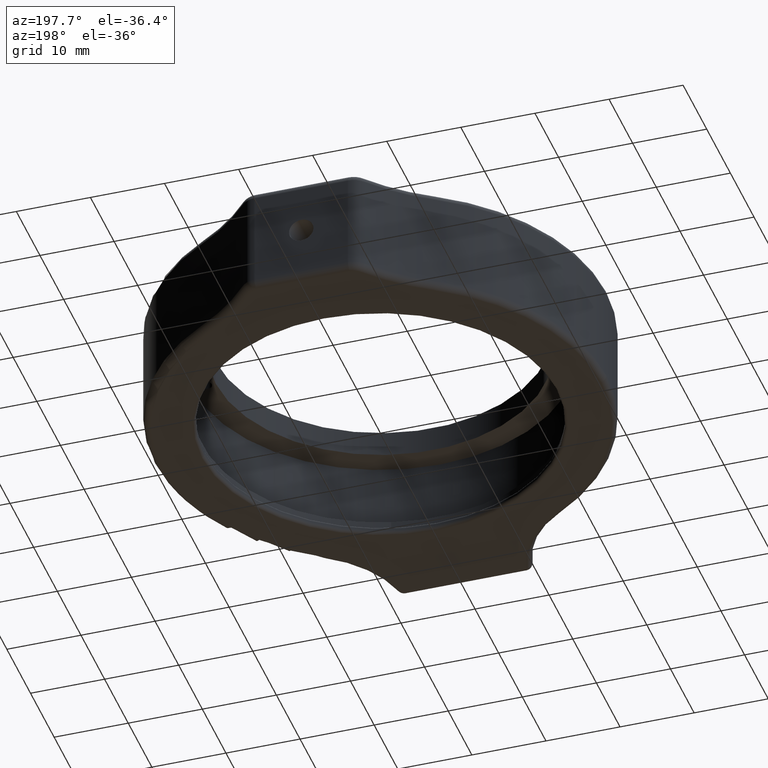
[diagram: clean part render]
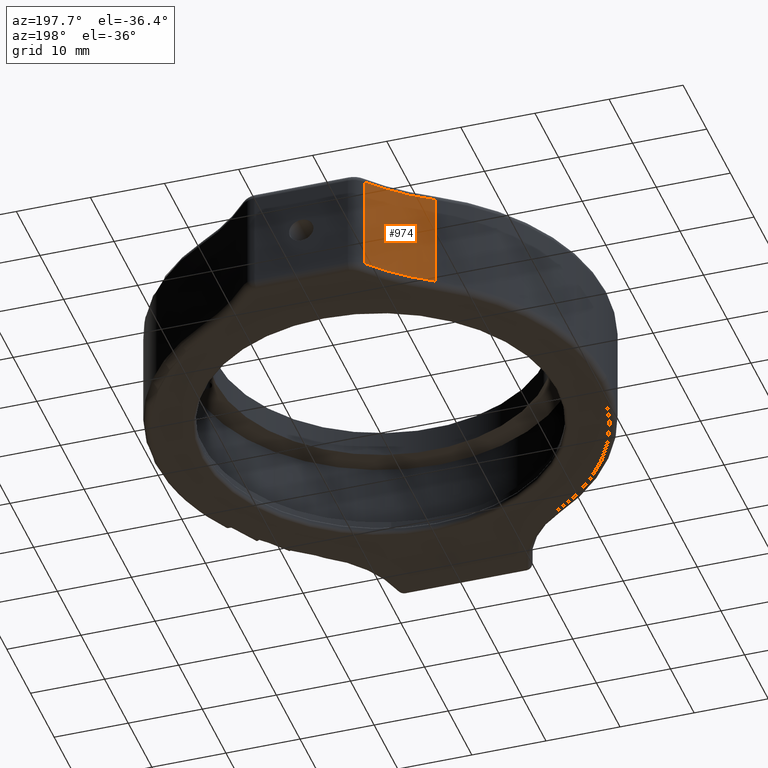
[diagram: same view with one face highlighted and labeled with its STEP entity id]
A machine part, auxiliary view. The second image highlights one B-rep face of the part: STEP entity #974.
In plain terms, the highlighted cylindrical surface (partial cylindrical patch) has radius 30 mm, axis along (-0, 0, 1).
Its self-contained STEP definition (entity closure, byte-faithful):
#96 = CARTESIAN_POINT ( 'NONE',  ( -31.28495036744999400, 51.78322006698884600, -15.00000000000000000 ) ) ;
#183 = EDGE_CURVE ( 'NONE', #896, #1405, #1856, .T. ) ;
#239 = CARTESIAN_POINT ( 'NONE',  ( -15.77175183813596100, 26.10559028170511600, -15.00000000000000000 ) ) ;
#241 = ORIENTED_EDGE ( 'NONE', *, *, #1471, .T. ) ;
#286 = DIRECTION ( 'NONE',  ( -0.0000000000000000000, -0.0000000000000000000, 1.000000000000000000 ) ) ;
#337 = CIRCLE ( 'NONE', #423, 30.00000000000000000 ) ;
#423 = AXIS2_PLACEMENT_3D ( 'NONE', #1821, #286, #810 ) ;
#431 = DIRECTION ( 'NONE',  ( -0.0000000000000000000, 0.0000000000000000000, 1.000000000000000000 ) ) ;
#468 = FACE_OUTER_BOUND ( 'NONE', #1328, .T. ) ;
#657 = VERTEX_POINT ( 'NONE', #1300 ) ;
#723 = VECTOR ( 'NONE', #1464, 1000.000000000000000 ) ;
#780 = VERTEX_POINT ( 'NONE', #1059 ) ;
#810 = DIRECTION ( 'NONE',  ( -1.000000000000000000, -3.006854025026465500E-015, 0.0000000000000000000 ) ) ;
#896 = VERTEX_POINT ( 'NONE', #1787 ) ;
#943 = DIRECTION ( 'NONE',  ( 0.0000000000000000000, 0.0000000000000000000, -1.000000000000000000 ) ) ;
#974 = ADVANCED_FACE ( 'NONE', ( #468 ), #2197, .F. ) ;
#1059 = CARTESIAN_POINT ( 'NONE',  ( -8.220810579183693200, 32.59870923592220000, -1.000000000000000900 ) ) ;
#1064 = DIRECTION ( 'NONE',  ( -0.0000000000000000000, 0.0000000000000000000, 1.000000000000000000 ) ) ;
#1186 = AXIS2_PLACEMENT_3D ( 'NONE', #96, #431, #1778 ) ;
#1300 = CARTESIAN_POINT ( 'NONE',  ( -8.220810579183693200, 32.59870923592220000, -13.99999999999999800 ) ) ;
#1328 = EDGE_LOOP ( 'NONE', ( #1843, #1962, #1704, #241 ) ) ;
#1405 = VERTEX_POINT ( 'NONE', #1966 ) ;
#1445 = LINE ( 'NONE', #1988, #723 ) ;
#1464 = DIRECTION ( 'NONE',  ( -0.0000000000000000000, 0.0000000000000000000, 1.000000000000000000 ) ) ;
#1471 = EDGE_CURVE ( 'NONE', #1405, #780, #337, .T. ) ;
#1477 = EDGE_CURVE ( 'NONE', #657, #896, #1745, .T. ) ;
#1488 = EDGE_CURVE ( 'NONE', #657, #780, #1445, .T. ) ;
#1624 = DIRECTION ( 'NONE',  ( -1.000000000000000000, 4.625929269271485900E-016, 0.0000000000000000000 ) ) ;
#1703 = AXIS2_PLACEMENT_3D ( 'NONE', #1996, #943, #1624 ) ;
#1704 = ORIENTED_EDGE ( 'NONE', *, *, #183, .T. ) ;
#1745 = CIRCLE ( 'NONE', #1703, 30.00000000000000000 ) ;
#1778 = DIRECTION ( 'NONE',  ( 1.000000000000000000, -4.625929269271485900E-016, 0.0000000000000000000 ) ) ;
#1787 = CARTESIAN_POINT ( 'NONE',  ( -15.77175183813596100, 26.10559028170511600, -13.99999999999999800 ) ) ;
#1821 = CARTESIAN_POINT ( 'NONE',  ( -31.28495036744999400, 51.78322006698884600, -1.000000000000000900 ) ) ;
#1843 = ORIENTED_EDGE ( 'NONE', *, *, #1488, .F. ) ;
#1856 = LINE ( 'NONE', #239, #2216 ) ;
#1962 = ORIENTED_EDGE ( 'NONE', *, *, #1477, .T. ) ;
#1966 = CARTESIAN_POINT ( 'NONE',  ( -15.77175183813596100, 26.10559028170511600, -1.000000000000000900 ) ) ;
#1988 = CARTESIAN_POINT ( 'NONE',  ( -8.220810579183693200, 32.59870923592220000, -15.00000000000000000 ) ) ;
#1996 = CARTESIAN_POINT ( 'NONE',  ( -31.28495036744999400, 51.78322006698884600, -13.99999999999999800 ) ) ;
#2197 = CYLINDRICAL_SURFACE ( 'NONE', #1186, 30.00000000000000000 ) ;
#2216 = VECTOR ( 'NONE', #1064, 1000.000000000000000 ) ;